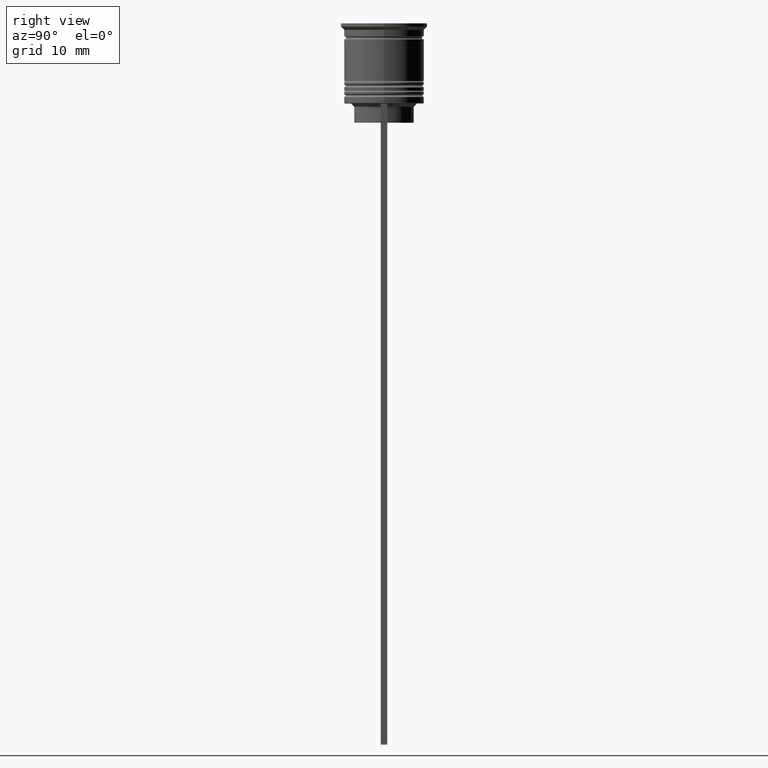
[diagram: clean part render]
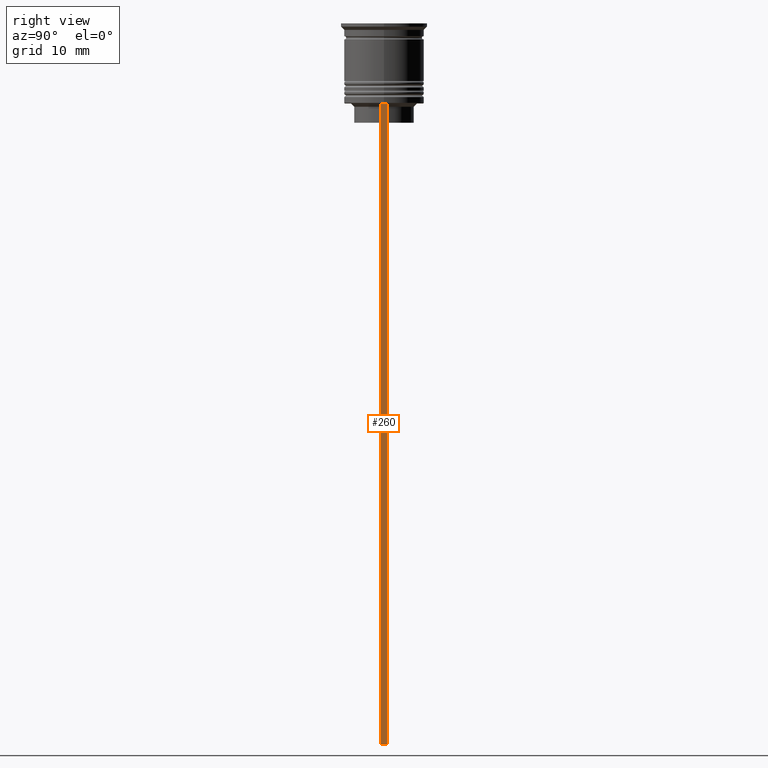
[diagram: same view with one face highlighted and labeled with its STEP entity id]
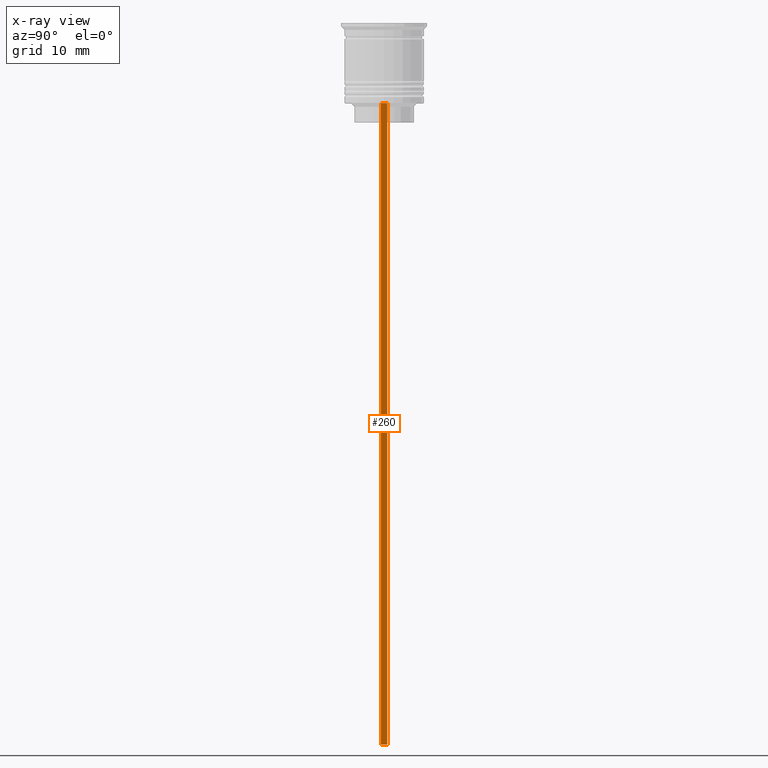
[diagram: x-ray of the same camera — body ghosted, the highlighted face saturated]
A machine part, right view. The second image highlights one B-rep face of the part: STEP entity #260.
The next image is the same camera in x-ray: the body ghosted, the highlighted face saturated — about 0% of this face is hidden behind the body in this view.
In plain terms, the highlighted planar face has unit normal (-1, 0, 0).
Its self-contained STEP definition (entity closure, byte-faithful):
#142 = EDGE_CURVE ( 'NONE', #2208, #2273, #1880, .T. ) ;
#192 = VERTEX_POINT ( 'NONE', #1169 ) ;
#196 = CARTESIAN_POINT ( 'NONE',  ( 6.000000000000016875, 0.4999999999999982792, -12.50000000000000000 ) ) ;
#260 = ADVANCED_FACE ( 'NONE', ( #2074 ), #426, .F. ) ;
#284 = VECTOR ( 'NONE', #1989, 1000.000000000000000 ) ;
#360 = ORIENTED_EDGE ( 'NONE', *, *, #434, .F. ) ;
#365 = CARTESIAN_POINT ( 'NONE',  ( 6.000000000000016875, -0.5000000000000017764, -12.50000000000000000 ) ) ;
#366 = CARTESIAN_POINT ( 'NONE',  ( 6.000000000000016875, 0.4999999999999982792, -0.4584054212077061097 ) ) ;
#377 = LINE ( 'NONE', #366, #2299 ) ;
#426 = PLANE ( 'NONE',  #1608 ) ;
#434 = EDGE_CURVE ( 'NONE', #2208, #671, #377, .T. ) ;
#638 = DIRECTION ( 'NONE',  ( 0.000000000000000000, 0.000000000000000000, -1.000000000000000000 ) ) ;
#671 = VERTEX_POINT ( 'NONE', #2248 ) ;
#822 = LINE ( 'NONE', #2293, #1388 ) ;
#909 = DIRECTION ( 'NONE',  ( 0.000000000000000000, 0.000000000000000000, -1.000000000000000000 ) ) ;
#1092 = DIRECTION ( 'NONE',  ( 0.000000000000000000, -1.000000000000000000, 0.000000000000000000 ) ) ;
#1150 = CARTESIAN_POINT ( 'NONE',  ( 6.000000000000016875, -0.5000000000000017764, -0.4584054212077061097 ) ) ;
#1169 = CARTESIAN_POINT ( 'NONE',  ( 6.000000000000016875, -0.5000000000000017764, -112.5000000000000000 ) ) ;
#1383 = EDGE_LOOP ( 'NONE', ( #360, #1822, #2029, #2311 ) ) ;
#1388 = VECTOR ( 'NONE', #638, 1000.000000000000000 ) ;
#1608 = AXIS2_PLACEMENT_3D ( 'NONE', #1150, #1899, #2259 ) ;
#1618 = LINE ( 'NONE', #2315, #284 ) ;
#1686 = VECTOR ( 'NONE', #1092, 1000.000000000000000 ) ;
#1822 = ORIENTED_EDGE ( 'NONE', *, *, #142, .T. ) ;
#1880 = LINE ( 'NONE', #2188, #1686 ) ;
#1899 = DIRECTION ( 'NONE',  ( -1.000000000000000000, 0.000000000000000000, 0.000000000000000000 ) ) ;
#1952 = EDGE_CURVE ( 'NONE', #2273, #192, #822, .T. ) ;
#1989 = DIRECTION ( 'NONE',  ( 0.000000000000000000, 1.000000000000000000, 0.000000000000000000 ) ) ;
#2029 = ORIENTED_EDGE ( 'NONE', *, *, #1952, .T. ) ;
#2039 = EDGE_CURVE ( 'NONE', #192, #671, #1618, .T. ) ;
#2074 = FACE_OUTER_BOUND ( 'NONE', #1383, .T. ) ;
#2188 = CARTESIAN_POINT ( 'NONE',  ( 6.000000000000016875, -0.5000000000000017764, -12.50000000000000000 ) ) ;
#2208 = VERTEX_POINT ( 'NONE', #196 ) ;
#2248 = CARTESIAN_POINT ( 'NONE',  ( 6.000000000000016875, 0.4999999999999982792, -112.5000000000000000 ) ) ;
#2259 = DIRECTION ( 'NONE',  ( 0.000000000000000000, 0.000000000000000000, 1.000000000000000000 ) ) ;
#2273 = VERTEX_POINT ( 'NONE', #365 ) ;
#2293 = CARTESIAN_POINT ( 'NONE',  ( 6.000000000000016875, -0.5000000000000017764, -0.4584054212077061097 ) ) ;
#2299 = VECTOR ( 'NONE', #909, 1000.000000000000000 ) ;
#2311 = ORIENTED_EDGE ( 'NONE', *, *, #2039, .T. ) ;
#2315 = CARTESIAN_POINT ( 'NONE',  ( 6.000000000000016875, -0.5000000000000017764, -112.5000000000000000 ) ) ;